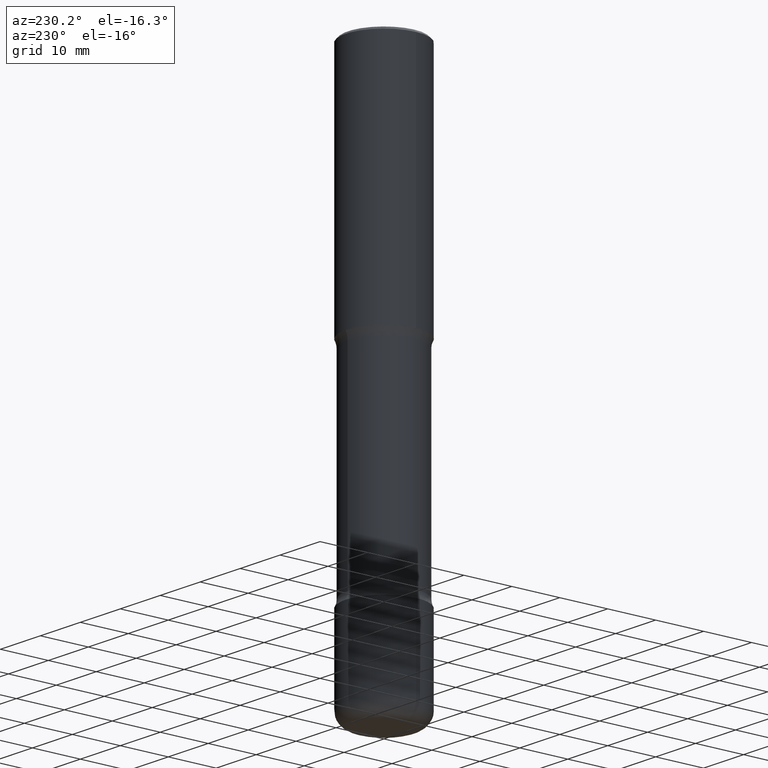
[diagram: clean part render]
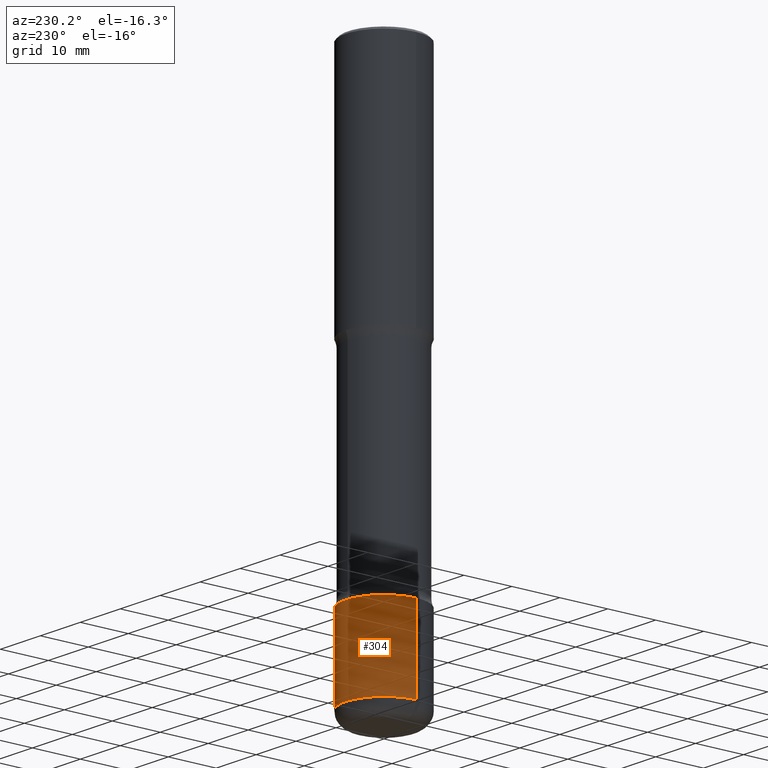
[diagram: same view with one face highlighted and labeled with its STEP entity id]
A machine part, auxiliary view. The second image highlights one B-rep face of the part: STEP entity #304.
In plain terms, the highlighted cylindrical surface (partial cylindrical patch) has radius 7.9997 mm, axis along (-0, 0, 1).
Its self-contained STEP definition (entity closure, byte-faithful):
#5 = LINE ( 'NONE', #83, #294 ) ;
#7 = DIRECTION ( 'NONE',  ( 1.000000000000000000, -6.982962677686263555E-15, 0.000000000000000000 ) ) ;
#41 = VERTEX_POINT ( 'NONE', #116 ) ;
#43 = CARTESIAN_POINT ( 'NONE',  ( 0.3149500000000002298, -1.525812259887842266E-14, -3.740199999999999747 ) ) ;
#50 = FACE_OUTER_BOUND ( 'NONE', #247, .T. ) ;
#68 = AXIS2_PLACEMENT_3D ( 'NONE', #81, #256, #392 ) ;
#81 = CARTESIAN_POINT ( 'NONE',  ( 9.146542428893647141E-29, -1.305883850354113279E-14, -3.740199999999999747 ) ) ;
#83 = CARTESIAN_POINT ( 'NONE',  ( -0.3149500000000002853, 2.237854346276437562E-15, -1.549218606675783797E-29 ) ) ;
#111 = ORIENTED_EDGE ( 'NONE', *, *, #496, .T. ) ;
#116 = CARTESIAN_POINT ( 'NONE',  ( 0.3149500000000002853, -1.759497105896613963E-14, -4.409499999999999531 ) ) ;
#118 = CIRCLE ( 'NONE', #68, 0.3149500000000002298 ) ;
#149 = ORIENTED_EDGE ( 'NONE', *, *, #557, .F. ) ;
#167 = DIRECTION ( 'NONE',  ( 1.000000000000000000, -6.982962677686267499E-15, 4.876176775795936353E-29 ) ) ;
#173 = CARTESIAN_POINT ( 'NONE',  ( 0.000000000000000000, 0.000000000000000000, 0.000000000000000000 ) ) ;
#176 = CARTESIAN_POINT ( 'NONE',  ( -0.3149500000000002298, -1.198940838730855371E-14, -3.740199999999999747 ) ) ;
#205 = CIRCLE ( 'NONE', #350, 0.3149500000000002853 ) ;
#225 = CYLINDRICAL_SURFACE ( 'NONE', #367, 0.3149500000000002853 ) ;
#231 = VERTEX_POINT ( 'NONE', #43 ) ;
#239 = ORIENTED_EDGE ( 'NONE', *, *, #244, .F. ) ;
#244 = EDGE_CURVE ( 'NONE', #231, #503, #118, .T. ) ;
#247 = EDGE_LOOP ( 'NONE', ( #111, #539, #239, #149 ) ) ;
#256 = DIRECTION ( 'NONE',  ( -2.445468806185136597E-29, 3.491481338843145583E-15, 1.000000000000000000 ) ) ;
#260 = DIRECTION ( 'NONE',  ( -2.445468806185136597E-29, 3.491481338843145583E-15, 1.000000000000000000 ) ) ;
#280 = VERTEX_POINT ( 'NONE', #351 ) ;
#290 = EDGE_CURVE ( 'NONE', #280, #503, #5, .T. ) ;
#294 = VECTOR ( 'NONE', #517, 39.37007874015748143 ) ;
#304 = ADVANCED_FACE ( 'NONE', ( #50 ), #225, .T. ) ;
#315 = DIRECTION ( 'NONE',  ( -2.445468806185136877E-29, 3.491481338843145188E-15, 1.000000000000000000 ) ) ;
#350 = AXIS2_PLACEMENT_3D ( 'NONE', #533, #401, #7 ) ;
#351 = CARTESIAN_POINT ( 'NONE',  ( -0.3149500000000002853, -1.315783261735241220E-14, -4.409499999999999531 ) ) ;
#355 = CARTESIAN_POINT ( 'NONE',  ( 0.3149500000000002853, -2.199284095337291843E-15, 1.535751875536931531E-29 ) ) ;
#361 = LINE ( 'NONE', #355, #428 ) ;
#367 = AXIS2_PLACEMENT_3D ( 'NONE', #173, #260, #167 ) ;
#392 = DIRECTION ( 'NONE',  ( 1.000000000000000000, -6.982962677686264344E-15, 0.000000000000000000 ) ) ;
#401 = DIRECTION ( 'NONE',  ( -2.445468806185136597E-29, 3.491481338843145583E-15, 1.000000000000000000 ) ) ;
#428 = VECTOR ( 'NONE', #315, 39.37007874015748143 ) ;
#496 = EDGE_CURVE ( 'NONE', #41, #280, #205, .T. ) ;
#503 = VERTEX_POINT ( 'NONE', #176 ) ;
#517 = DIRECTION ( 'NONE',  ( -2.445468806185136877E-29, 3.491481338843145188E-15, 1.000000000000000000 ) ) ;
#533 = CARTESIAN_POINT ( 'NONE',  ( 1.078329470087335798E-28, -1.539568696362884818E-14, -4.409499999999999531 ) ) ;
#539 = ORIENTED_EDGE ( 'NONE', *, *, #290, .T. ) ;
#557 = EDGE_CURVE ( 'NONE', #41, #231, #361, .T. ) ;